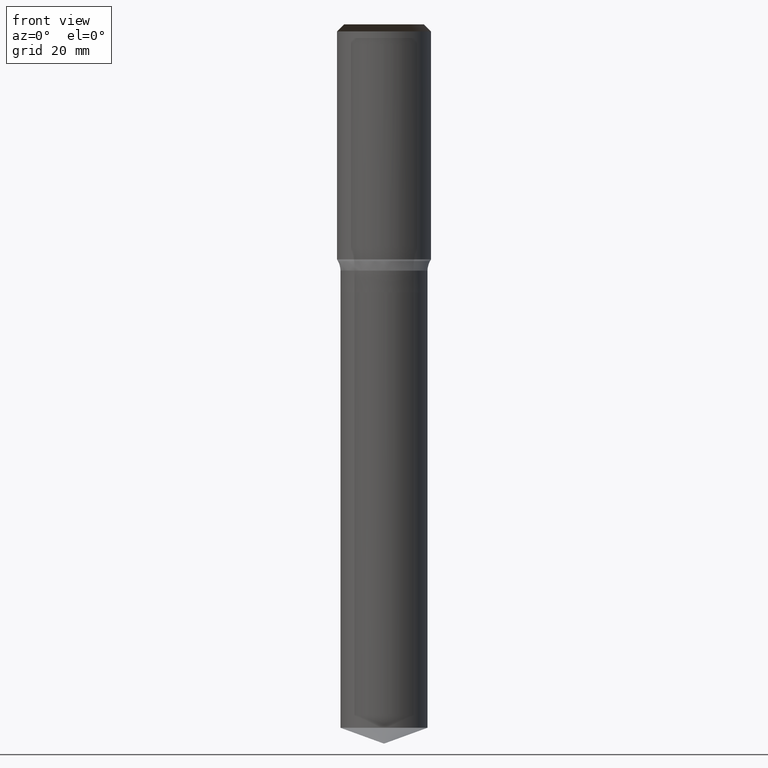
[diagram: clean part render]
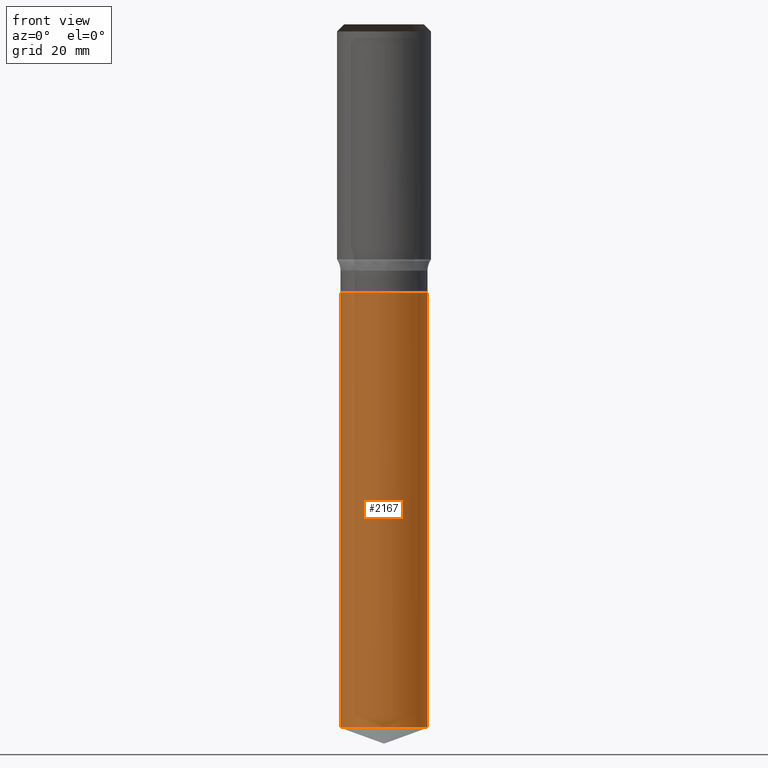
[diagram: same view with one face highlighted and labeled with its STEP entity id]
A machine part, front view. The second image highlights one B-rep face of the part: STEP entity #2167.
In plain terms, the highlighted face is a freeform B-spline surface patch.
Its self-contained STEP definition (entity closure, byte-faithful):
#2009=CARTESIAN_POINT('',(9.25,0.0,-99.633313438714));
#2013=CARTESIAN_POINT('',(-9.25,0.0,-99.633313438714));
#2014=CARTESIAN_POINT('',(9.25,0.0,-7.000038105677));
#2018=CARTESIAN_POINT('',(-9.25,0.0,-7.000038105677));
#2020=CARTESIAN_POINT('',(-9.25,-9.25,-99.633313438714));
#2021=CARTESIAN_POINT('',(0.0,-9.25,-99.633313438714));
#2022=CARTESIAN_POINT('',(9.25,-9.25,-99.633313438714));
#2023=CARTESIAN_POINT('',(-9.25,-9.25,-7.000038105677));
#2024=CARTESIAN_POINT('',(0.0,-9.25,-7.000038105677));
#2025=CARTESIAN_POINT('',(9.25,-9.25,-7.000038105677));
#2148=(
BOUNDED_SURFACE()
B_SPLINE_SURFACE(1,2,(
(#2013,#2020,#2021,#2022,#2009),
(#2018,#2023,#2024,#2025,#2014)
), .UNSPECIFIED.,.F.,.F.,.F.)
B_SPLINE_SURFACE_WITH_KNOTS((2,2),(3,2,3),(
0.0,1.0),(
0.0,0.5,1.0), .UNSPECIFIED.)
GEOMETRIC_REPRESENTATION_ITEM()
RATIONAL_B_SPLINE_SURFACE(((1.0,0.707106781187,1.0,0.707106781187,1.0),
(1.0,0.707106781187,1.0,0.707106781187,1.0)
))
REPRESENTATION_ITEM('')
SURFACE()
);
#2149=(
BOUNDED_CURVE()
B_SPLINE_CURVE(2,(#2009,#2022,#2021,#2020,#2013),.UNSPECIFIED.,.F.,.F.)
B_SPLINE_CURVE_WITH_KNOTS((3,2,3),
(0.0,0.5,1.0),.UNSPECIFIED.)
CURVE()
GEOMETRIC_REPRESENTATION_ITEM()
RATIONAL_B_SPLINE_CURVE((1.0,0.707106781187,1.0,0.707106781187,1.0))
REPRESENTATION_ITEM('')
);
#2150=(
BOUNDED_CURVE()
B_SPLINE_CURVE(1,(#2013,#2018),.UNSPECIFIED.,.F.,.F.)
B_SPLINE_CURVE_WITH_KNOTS((2,2),
(0.0,1.0),.UNSPECIFIED.)
CURVE()
GEOMETRIC_REPRESENTATION_ITEM()
RATIONAL_B_SPLINE_CURVE((1.0,1.0))
REPRESENTATION_ITEM('')
);
#2151=(
BOUNDED_CURVE()
B_SPLINE_CURVE(2,(#2018,#2023,#2024,#2025,#2014),.UNSPECIFIED.,.F.,.F.)
B_SPLINE_CURVE_WITH_KNOTS((3,2,3),
(0.0,0.5,1.0),.UNSPECIFIED.)
CURVE()
GEOMETRIC_REPRESENTATION_ITEM()
RATIONAL_B_SPLINE_CURVE((1.0,0.707106781187,1.0,0.707106781187,1.0))
REPRESENTATION_ITEM('')
);
#2152=(
BOUNDED_CURVE()
B_SPLINE_CURVE(1,(#2014,#2009),.UNSPECIFIED.,.F.,.F.)
B_SPLINE_CURVE_WITH_KNOTS((2,2),
(0.0,1.0),.UNSPECIFIED.)
CURVE()
GEOMETRIC_REPRESENTATION_ITEM()
RATIONAL_B_SPLINE_CURVE((1.0,1.0))
REPRESENTATION_ITEM('')
);
#2153=VERTEX_POINT('',#2009);
#2154=VERTEX_POINT('',#2013);
#2155=VERTEX_POINT('',#2014);
#2156=VERTEX_POINT('',#2018);
#2157=EDGE_CURVE('',#2153,#2154,#2149,.T.);
#2158=EDGE_CURVE('',#2154,#2156,#2150,.T.);
#2159=EDGE_CURVE('',#2156,#2155,#2151,.T.);
#2160=EDGE_CURVE('',#2155,#2153,#2152,.T.);
#2161=ORIENTED_EDGE('',*,*,#2157,.T.);
#2162=ORIENTED_EDGE('',*,*,#2158,.T.);
#2163=ORIENTED_EDGE('',*,*,#2159,.T.);
#2164=ORIENTED_EDGE('',*,*,#2160,.T.);
#2165=EDGE_LOOP('',(#2161,#2162,#2163,#2164));
#2166=FACE_OUTER_BOUND('',#2165,.T.);
#2167=ADVANCED_FACE('',(#2166),#2148,.T.);